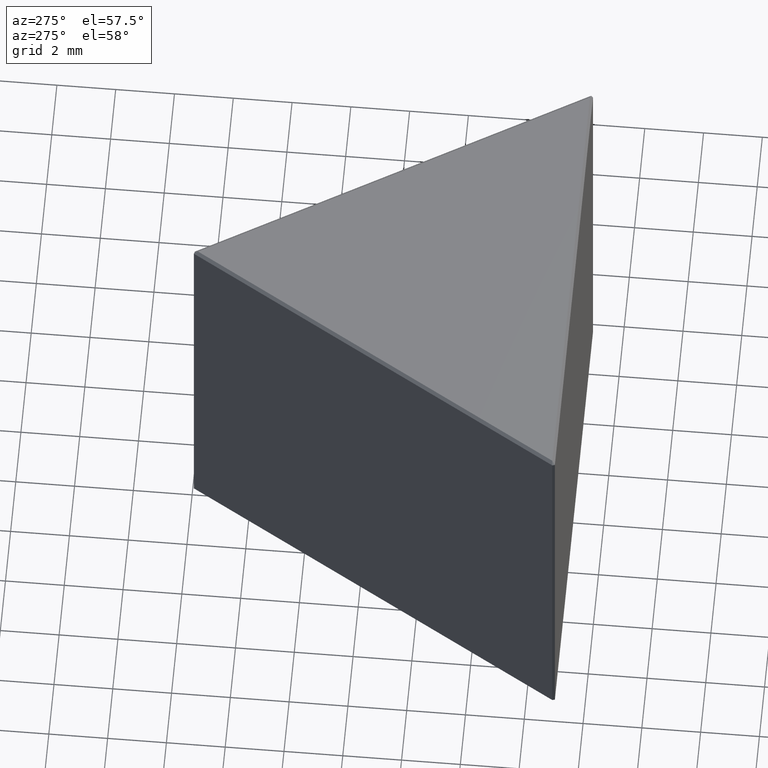
[diagram: clean part render]
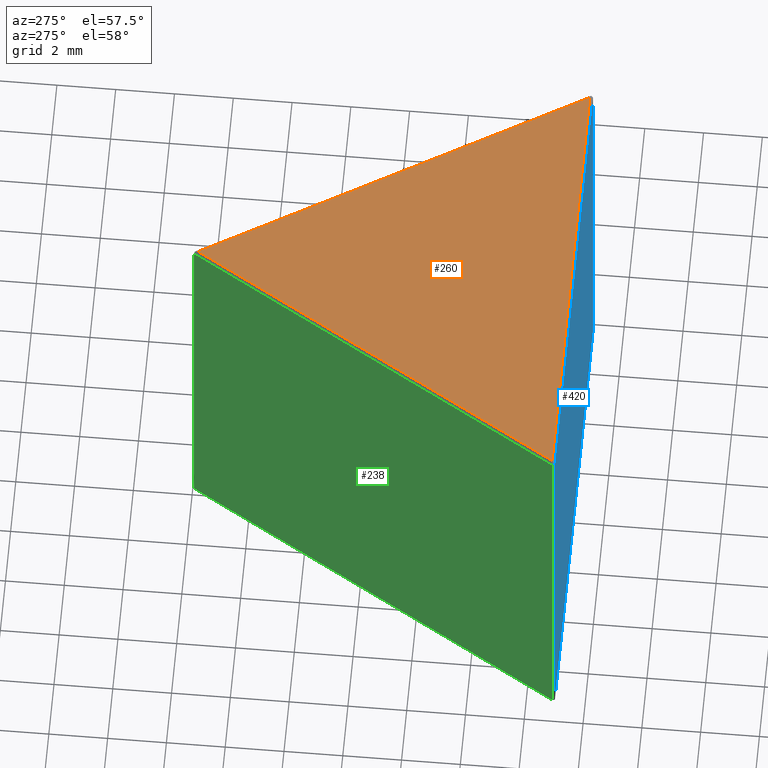
[diagram: same view with three faces highlighted in distinct colors, each labeled with its STEP entity id]
A machine part, auxiliary view with three faces highlighted in distinct colors.
Their STEP definitions:

[orange] entity #260 — the highlighted planar face has unit normal (0, 0, 1).
#10 = LINE ( 'NONE', #326, #322 ) ;
#12 = ORIENTED_EDGE ( 'NONE', *, *, #75, .T. ) ;
#24 = VERTEX_POINT ( 'NONE', #264 ) ;
#75 = EDGE_CURVE ( 'NONE', #91, #24, #101, .T. ) ;
#91 = VERTEX_POINT ( 'NONE', #223 ) ;
#101 = LINE ( 'NONE', #452, #241 ) ;
#122 = FACE_OUTER_BOUND ( 'NONE', #480, .T. ) ;
#159 = VECTOR ( 'NONE', #396, 1000.000000000000114 ) ;
#170 = CARTESIAN_POINT ( 'NONE',  ( 7.002976905571655370E-16, -0.1999999999999912959, 15.00000000000000000 ) ) ;
#223 = CARTESIAN_POINT ( 'NONE',  ( -7.326794919243119431, -12.89038105676658219, 15.00000000000000000 ) ) ;
#241 = VECTOR ( 'NONE', #262, 1000.000000000000000 ) ;
#242 = CARTESIAN_POINT ( 'NONE',  ( -7.413397459621560159, -13.04038105676657544, 15.00000000000000000 ) ) ;
#245 = PLANE ( 'NONE',  #372 ) ;
#248 = ORIENTED_EDGE ( 'NONE', *, *, #269, .T. ) ;
#260 = ADVANCED_FACE ( 'NONE', ( #122 ), #245, .T. ) ;
#262 = DIRECTION ( 'NONE',  ( 1.000000000000000000, 0.000000000000000000, 0.000000000000000000 ) ) ;
#264 = CARTESIAN_POINT ( 'NONE',  ( 7.326794919243120319, -12.89038105676658219, 15.00000000000000000 ) ) ;
#269 = EDGE_CURVE ( 'NONE', #24, #482, #10, .T. ) ;
#310 = EDGE_CURVE ( 'NONE', #482, #91, #320, .T. ) ;
#320 = LINE ( 'NONE', #242, #159 ) ;
#322 = VECTOR ( 'NONE', #468, 1000.000000000000114 ) ;
#326 = CARTESIAN_POINT ( 'NONE',  ( -0.08660254037843957697, -0.04999999999999753253, 15.00000000000000000 ) ) ;
#369 = DIRECTION ( 'NONE',  ( 0.000000000000000000, 0.000000000000000000, 1.000000000000000000 ) ) ;
#372 = AXIS2_PLACEMENT_3D ( 'NONE', #435, #369, #441 ) ;
#396 = DIRECTION ( 'NONE',  ( -0.5000000000000001110, -0.8660254037844385966, 0.000000000000000000 ) ) ;
#409 = ORIENTED_EDGE ( 'NONE', *, *, #310, .T. ) ;
#435 = CARTESIAN_POINT ( 'NONE',  ( 0.000000000000000000, 0.000000000000000000, 15.00000000000000000 ) ) ;
#441 = DIRECTION ( 'NONE',  ( 1.000000000000000000, 0.000000000000000000, -0.000000000000000000 ) ) ;
#452 = CARTESIAN_POINT ( 'NONE',  ( 7.500000000000000000, -12.89038105676658219, 15.00000000000000000 ) ) ;
#468 = DIRECTION ( 'NONE',  ( -0.5000000000000001110, 0.8660254037844385966, 0.000000000000000000 ) ) ;
#480 = EDGE_LOOP ( 'NONE', ( #409, #12, #248 ) ) ;
#482 = VERTEX_POINT ( 'NONE', #170 ) ;

[blue] entity #420 — the highlighted planar face has unit normal (0, 1, 0).
#23 = VECTOR ( 'NONE', #353, 1000.000000000000000 ) ;
#26 = LINE ( 'NONE', #231, #49 ) ;
#31 = VERTEX_POINT ( 'NONE', #336 ) ;
#34 = VERTEX_POINT ( 'NONE', #105 ) ;
#35 = EDGE_CURVE ( 'NONE', #312, #31, #488, .T. ) ;
#37 = VECTOR ( 'NONE', #415, 1000.000000000000000 ) ;
#49 = VECTOR ( 'NONE', #315, 1000.000000000000000 ) ;
#74 = DIRECTION ( 'NONE',  ( 0.000000000000000000, -0.000000000000000000, 1.000000000000000000 ) ) ;
#88 = CARTESIAN_POINT ( 'NONE',  ( 7.399999999999995026, -12.99038105676657828, 14.90000000000000391 ) ) ;
#105 = CARTESIAN_POINT ( 'NONE',  ( -7.426794919243112858, -12.99038105676657828, 0.09999999999999939493 ) ) ;
#108 = LINE ( 'NONE', #200, #313 ) ;
#116 = CARTESIAN_POINT ( 'NONE',  ( 7.399999999999995026, -12.99038105676657828, 15.00000000000000000 ) ) ;
#144 = VERTEX_POINT ( 'NONE', #351 ) ;
#148 = ORIENTED_EDGE ( 'NONE', *, *, #154, .T. ) ;
#154 = EDGE_CURVE ( 'NONE', #144, #312, #302, .T. ) ;
#198 = EDGE_LOOP ( 'NONE', ( #148, #459, #290, #448 ) ) ;
#199 = EDGE_CURVE ( 'NONE', #34, #144, #26, .T. ) ;
#200 = CARTESIAN_POINT ( 'NONE',  ( -7.426794919243112858, -12.99038105676657828, 15.00000000000000000 ) ) ;
#217 = FACE_OUTER_BOUND ( 'NONE', #198, .T. ) ;
#224 = EDGE_CURVE ( 'NONE', #31, #34, #108, .T. ) ;
#231 = CARTESIAN_POINT ( 'NONE',  ( -7.500000000000000000, -12.99038105676657828, 0.09999999999999939493 ) ) ;
#286 = DIRECTION ( 'NONE',  ( 0.000000000000000000, 1.000000000000000000, 0.000000000000000000 ) ) ;
#290 = ORIENTED_EDGE ( 'NONE', *, *, #224, .T. ) ;
#302 = LINE ( 'NONE', #116, #23 ) ;
#312 = VERTEX_POINT ( 'NONE', #88 ) ;
#313 = VECTOR ( 'NONE', #502, 1000.000000000000000 ) ;
#314 = AXIS2_PLACEMENT_3D ( 'NONE', #370, #286, #74 ) ;
#315 = DIRECTION ( 'NONE',  ( 1.000000000000000000, 0.000000000000000000, 0.000000000000000000 ) ) ;
#336 = CARTESIAN_POINT ( 'NONE',  ( -7.426794919243112858, -12.99038105676657828, 14.90000000000000391 ) ) ;
#351 = CARTESIAN_POINT ( 'NONE',  ( 7.399999999999995026, -12.99038105676657828, 0.09999999999999939493 ) ) ;
#353 = DIRECTION ( 'NONE',  ( 0.000000000000000000, 0.000000000000000000, 1.000000000000000000 ) ) ;
#370 = CARTESIAN_POINT ( 'NONE',  ( -7.500000000000000000, -12.99038105676657828, 15.00000000000000000 ) ) ;
#398 = PLANE ( 'NONE',  #314 ) ;
#415 = DIRECTION ( 'NONE',  ( -1.000000000000000000, 0.000000000000000000, 0.000000000000000000 ) ) ;
#420 = ADVANCED_FACE ( 'NONE', ( #217 ), #398, .F. ) ;
#448 = ORIENTED_EDGE ( 'NONE', *, *, #199, .T. ) ;
#455 = CARTESIAN_POINT ( 'NONE',  ( -7.500000000000000000, -12.99038105676657828, 14.90000000000000391 ) ) ;
#459 = ORIENTED_EDGE ( 'NONE', *, *, #35, .T. ) ;
#488 = LINE ( 'NONE', #455, #37 ) ;
#502 = DIRECTION ( 'NONE',  ( 0.000000000000000000, 0.000000000000000000, -1.000000000000000000 ) ) ;

[green] entity #238 — the highlighted planar face has unit normal (0.866, -0.5, 0).
#3 = VERTEX_POINT ( 'NONE', #95 ) ;
#13 = EDGE_CURVE ( 'NONE', #156, #228, #343, .T. ) ;
#21 = EDGE_LOOP ( 'NONE', ( #256, #497, #431, #462 ) ) ;
#22 = CARTESIAN_POINT ( 'NONE',  ( -0.03660254037844470204, -0.06339745962155758641, 15.00000000000000000 ) ) ;
#55 = VERTEX_POINT ( 'NONE', #456 ) ;
#58 = DIRECTION ( 'NONE',  ( -0.5000000000000001110, -0.8660254037844387076, 0.000000000000000000 ) ) ;
#62 = VECTOR ( 'NONE', #73, 1000.000000000000000 ) ;
#64 = DIRECTION ( 'NONE',  ( 0.000000000000000000, 0.000000000000000000, -1.000000000000000000 ) ) ;
#67 = CARTESIAN_POINT ( 'NONE',  ( 0.000000000000000000, 0.000000000000000000, 15.00000000000000000 ) ) ;
#68 = EDGE_CURVE ( 'NONE', #228, #55, #106, .T. ) ;
#71 = LINE ( 'NONE', #239, #62 ) ;
#73 = DIRECTION ( 'NONE',  ( 0.000000000000000000, 0.000000000000000000, 1.000000000000000000 ) ) ;
#95 = CARTESIAN_POINT ( 'NONE',  ( -7.449999999999999289, -12.90377851638813311, 14.90000000000000391 ) ) ;
#106 = LINE ( 'NONE', #418, #395 ) ;
#109 = PLANE ( 'NONE',  #212 ) ;
#112 = CARTESIAN_POINT ( 'NONE',  ( -0.03660254037844470204, -0.06339745962155758641, 0.1000000000000006301 ) ) ;
#125 = EDGE_CURVE ( 'NONE', #55, #3, #71, .T. ) ;
#156 = VERTEX_POINT ( 'NONE', #271 ) ;
#167 = EDGE_CURVE ( 'NONE', #3, #156, #490, .T. ) ;
#212 = AXIS2_PLACEMENT_3D ( 'NONE', #67, #387, #422 ) ;
#228 = VERTEX_POINT ( 'NONE', #112 ) ;
#238 = ADVANCED_FACE ( 'NONE', ( #460 ), #109, .F. ) ;
#239 = CARTESIAN_POINT ( 'NONE',  ( -7.449999999999999289, -12.90377851638813311, 15.00000000000000000 ) ) ;
#256 = ORIENTED_EDGE ( 'NONE', *, *, #125, .T. ) ;
#267 = VECTOR ( 'NONE', #64, 1000.000000000000000 ) ;
#271 = CARTESIAN_POINT ( 'NONE',  ( -0.03660254037844470204, -0.06339745962155758641, 14.90000000000000391 ) ) ;
#276 = DIRECTION ( 'NONE',  ( 0.5000000000000001110, 0.8660254037844387076, 0.000000000000000000 ) ) ;
#303 = VECTOR ( 'NONE', #276, 999.9999999999998863 ) ;
#343 = LINE ( 'NONE', #22, #267 ) ;
#387 = DIRECTION ( 'NONE',  ( 0.8660254037844387076, -0.5000000000000001110, 0.000000000000000000 ) ) ;
#395 = VECTOR ( 'NONE', #58, 999.9999999999998863 ) ;
#418 = CARTESIAN_POINT ( 'NONE',  ( 0.000000000000000000, 0.000000000000000000, 0.1000000000000011297 ) ) ;
#422 = DIRECTION ( 'NONE',  ( 0.5000000000000000000, 0.8660254037844385966, 0.000000000000000000 ) ) ;
#425 = CARTESIAN_POINT ( 'NONE',  ( 1.355252715606880543E-17, 0.000000000000000000, 14.90000000000000391 ) ) ;
#431 = ORIENTED_EDGE ( 'NONE', *, *, #13, .T. ) ;
#456 = CARTESIAN_POINT ( 'NONE',  ( -7.449999999999999289, -12.90377851638813311, 0.1000000000000006301 ) ) ;
#460 = FACE_OUTER_BOUND ( 'NONE', #21, .T. ) ;
#462 = ORIENTED_EDGE ( 'NONE', *, *, #68, .T. ) ;
#490 = LINE ( 'NONE', #425, #303 ) ;
#497 = ORIENTED_EDGE ( 'NONE', *, *, #167, .T. ) ;